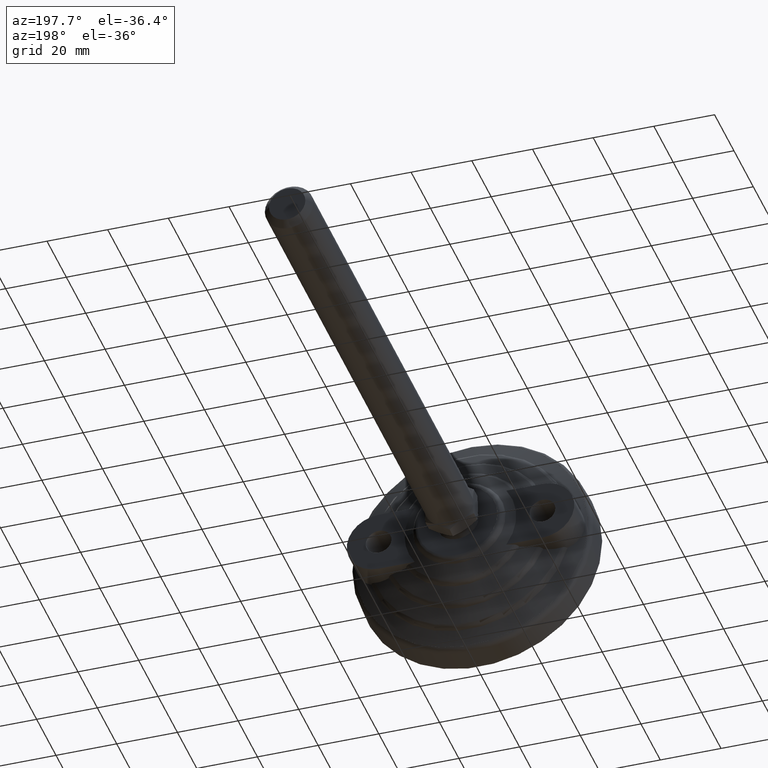
[diagram: clean part render]
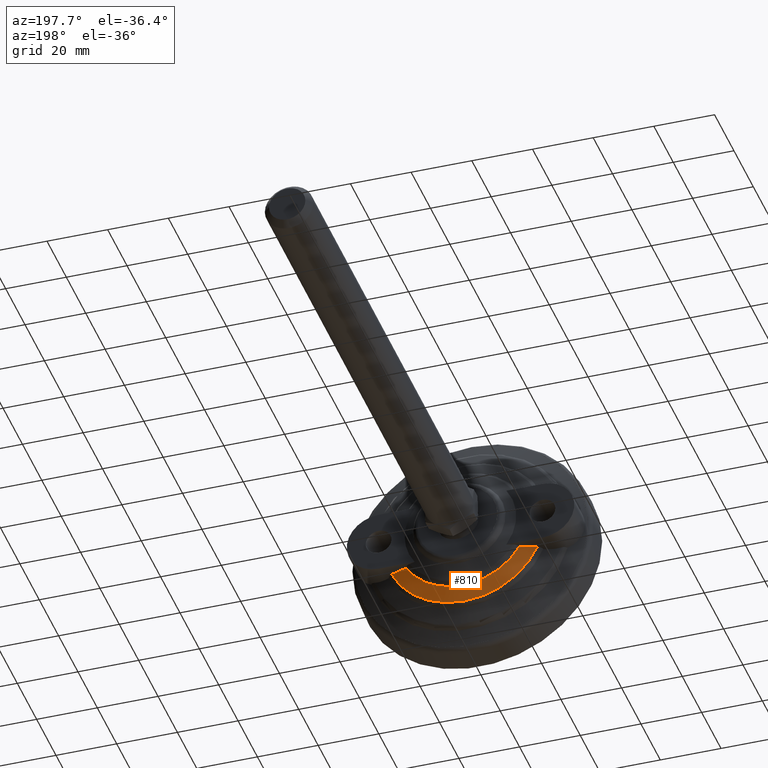
[diagram: same view with one face highlighted and labeled with its STEP entity id]
A machine part, auxiliary view. The second image highlights one B-rep face of the part: STEP entity #810.
In plain terms, the highlighted conical surface has half-angle 69.278 deg.
Its self-contained STEP definition (entity closure, byte-faithful):
#71=(
BOUNDED_CURVE()
B_SPLINE_CURVE(2,(#1545,#1546,#1547),.UNSPECIFIED.,.F.,.F.)
B_SPLINE_CURVE_WITH_KNOTS((3,3),(0.,5.7091762119522),.UNSPECIFIED.)
CURVE()
GEOMETRIC_REPRESENTATION_ITEM()
RATIONAL_B_SPLINE_CURVE((1.,1.00651975650061,1.))
REPRESENTATION_ITEM('')
);
#77=(
BOUNDED_CURVE()
B_SPLINE_CURVE(2,(#1577,#1578,#1579),.UNSPECIFIED.,.F.,.F.)
B_SPLINE_CURVE_WITH_KNOTS((3,3),(0.,5.7091762119522),.UNSPECIFIED.)
CURVE()
GEOMETRIC_REPRESENTATION_ITEM()
RATIONAL_B_SPLINE_CURVE((1.,1.00651975650061,1.))
REPRESENTATION_ITEM('')
);
#150=FACE_OUTER_BOUND('',#198,.T.);
#198=EDGE_LOOP('',(#691,#692,#693,#694));
#292=CIRCLE('',#928,21.3688559201133);
#298=CIRCLE('',#937,26.2130899969146);
#343=VERTEX_POINT('',#1323);
#344=VERTEX_POINT('',#1334);
#354=VERTEX_POINT('',#1396);
#355=VERTEX_POINT('',#1397);
#432=EDGE_CURVE('',#344,#343,#292,.T.);
#446=EDGE_CURVE('',#354,#355,#298,.T.);
#477=EDGE_CURVE('',#343,#355,#71,.T.);
#490=EDGE_CURVE('',#354,#344,#77,.T.);
#691=ORIENTED_EDGE('',*,*,#490,.T.);
#692=ORIENTED_EDGE('',*,*,#432,.T.);
#693=ORIENTED_EDGE('',*,*,#477,.T.);
#694=ORIENTED_EDGE('',*,*,#446,.F.);
#778=CONICAL_SURFACE('',#971,23.7909729585139,1.20912995397194);
#810=ADVANCED_FACE('',(#150),#778,.T.);
#928=AXIS2_PLACEMENT_3D('',#1335,#1056,#1057);
#937=AXIS2_PLACEMENT_3D('',#1398,#1075,#1076);
#971=AXIS2_PLACEMENT_3D('',#1597,#1154,#1155);
#1056=DIRECTION('center_axis',(0.,-1.,0.));
#1057=DIRECTION('ref_axis',(-1.,0.,0.));
#1075=DIRECTION('center_axis',(0.,-1.,0.));
#1076=DIRECTION('ref_axis',(-1.,0.,0.));
#1154=DIRECTION('center_axis',(0.,-1.,0.));
#1155=DIRECTION('ref_axis',(-1.,0.,0.));
#1323=CARTESIAN_POINT('',(18.6112332566802,18.6885788450571,-10.5));
#1334=CARTESIAN_POINT('',(-18.6112332566802,18.6885788450571,-10.5));
#1335=CARTESIAN_POINT('Origin',(0.,18.6885788450571,0.));
#1396=CARTESIAN_POINT('',(-24.0182448814717,16.8559735555763,-10.5));
#1397=CARTESIAN_POINT('',(24.0182448814717,16.8559735555763,-10.5));
#1398=CARTESIAN_POINT('Origin',(0.,16.8559735555763,0.));
#1545=CARTESIAN_POINT('Ctrl Pts',(18.6112332566802,18.6885788450571,-10.5));
#1546=CARTESIAN_POINT('Ctrl Pts',(21.0394999057571,17.8884976336614,-10.5));
#1547=CARTESIAN_POINT('Ctrl Pts',(24.0182448814717,16.8559735555763,-10.5));
#1577=CARTESIAN_POINT('Ctrl Pts',(-24.0182448814717,16.8559735555763,-10.5));
#1578=CARTESIAN_POINT('Ctrl Pts',(-21.0394999057571,17.8884976336614,-10.5));
#1579=CARTESIAN_POINT('Ctrl Pts',(-18.6112332566802,18.6885788450571,-10.5));
#1597=CARTESIAN_POINT('Origin',(0.,17.7722762003167,0.));